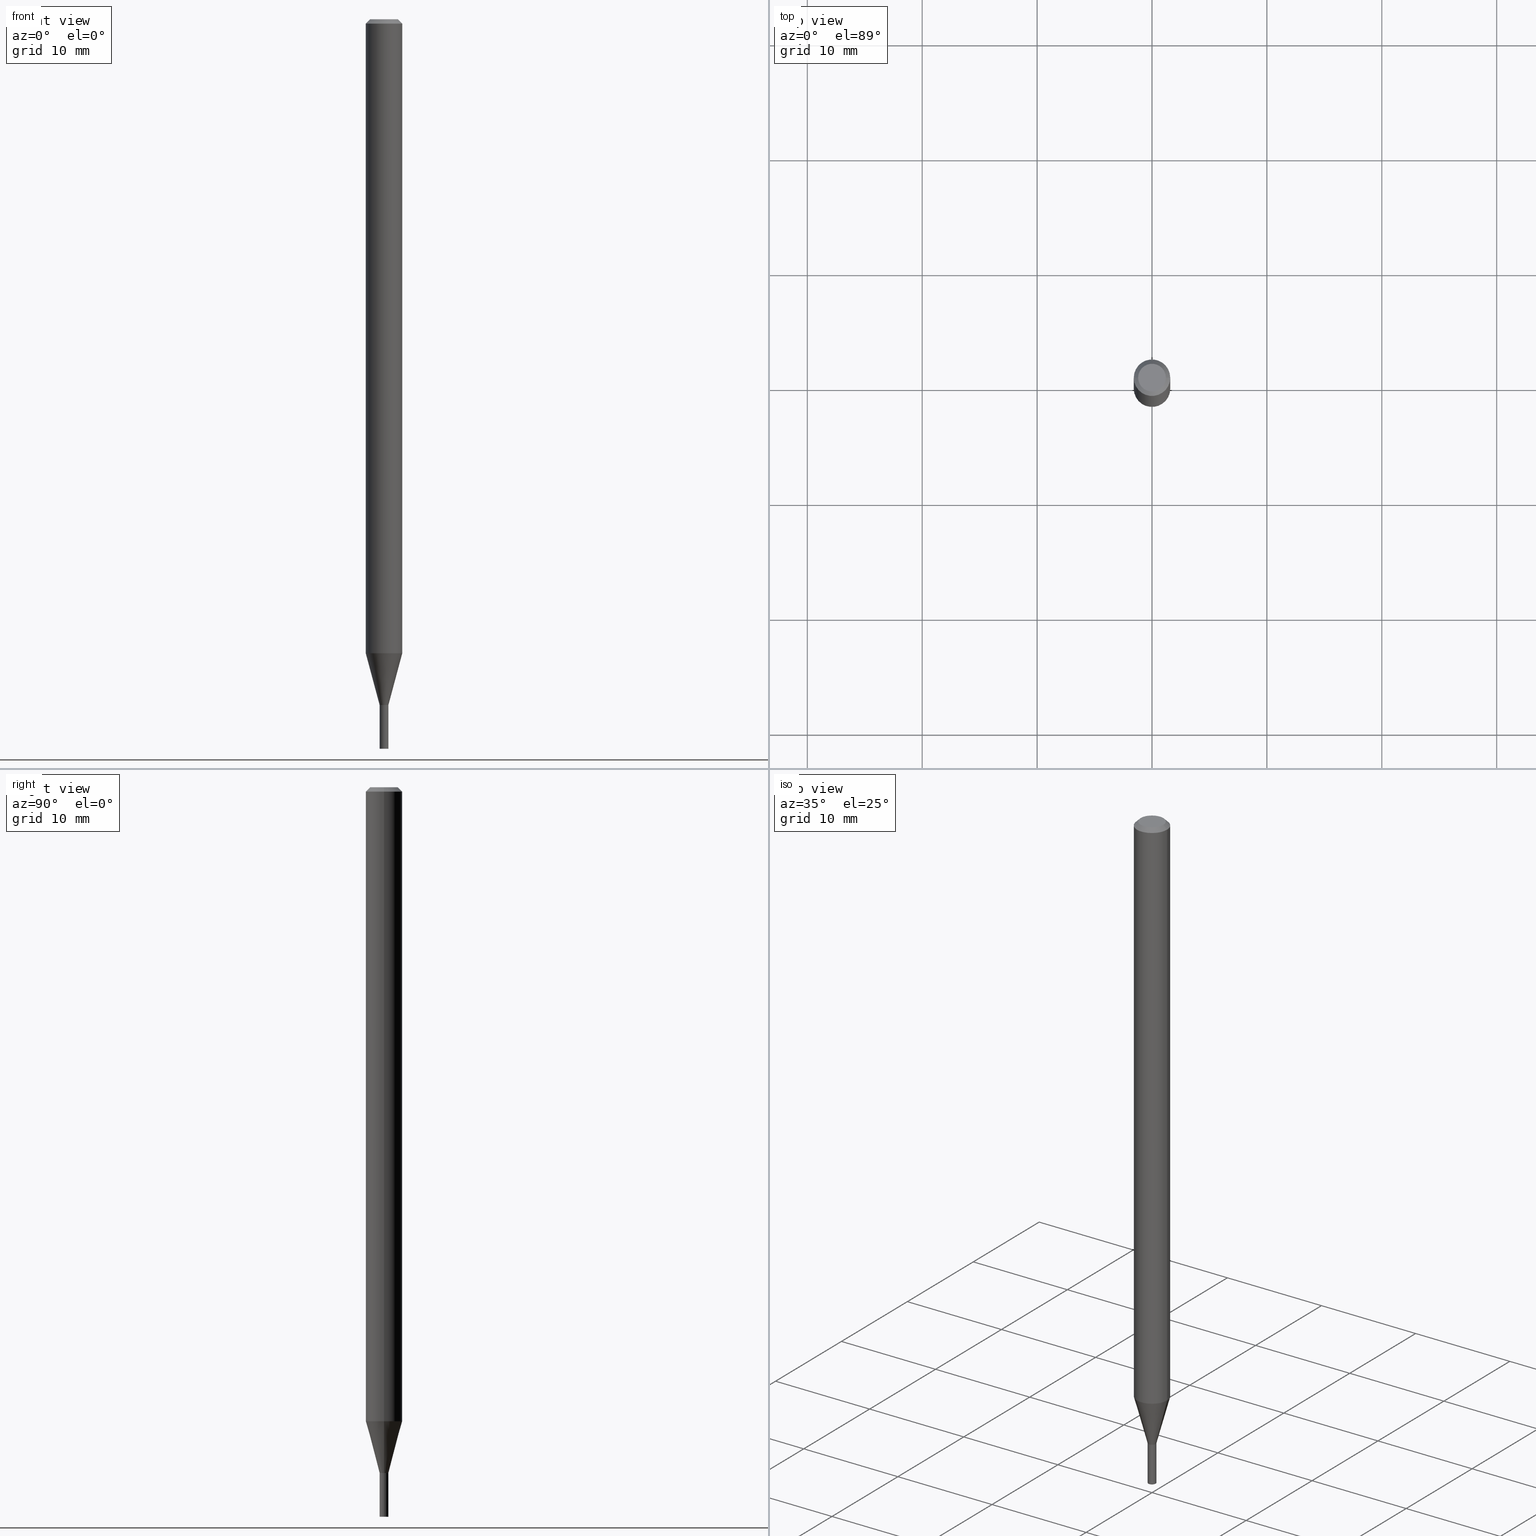
[diagram: canonical four-view strip — front | top / right | iso, engineering-drawing reading convention]
A machine part, canonical four-view strip (front | top / right | iso — engineering-drawing reading convention). The complete STEP part file that produces these views, byte-faithful:
ISO-10303-21;
HEADER;
FILE_DESCRIPTION (( 'STEP AP203' ),
    '1' );
FILE_NAME ('01231.STEP',
    '2024-03-20T00:19:22',
    ( '' ),
    ( '' ),
    'SwSTEP 2.0',
    'SolidWorks 2023',
    '' );
FILE_SCHEMA (( 'CONFIG_CONTROL_DESIGN' ));
ENDSEC;

DATA;
#1 = DIRECTION ( 'NONE',  ( -2.438088387897960049E-29, 3.491481338843145188E-15, 1.000000000000000000 ) ) ;
#2 = EDGE_CURVE ( 'NONE', #220, #433, #287, .T. ) ;
#3 = DIRECTION ( 'NONE',  ( -2.445468806185136597E-29, 3.491481338843145583E-15, 1.000000000000000000 ) ) ;
#4 = LINE ( 'NONE', #152, #146 ) ;
#5 = CONICAL_SURFACE ( 'NONE', #277, 0.06250000000000000000, 0.7853981633974284060 ) ;
#6 = CARTESIAN_POINT ( 'NONE',  ( 6.113672015462842613E-29, -8.728703347107864943E-15, -2.500000000000000000 ) ) ;
#7 = ORIENTED_EDGE ( 'NONE', *, *, #78, .F. ) ;
#8 = PLANE ( 'NONE',  #250 ) ;
#9 = CARTESIAN_POINT ( 'NONE',  ( 0.000000000000000000, 0.000000000000000000, 0.000000000000000000 ) ) ;
#10 = ORIENTED_EDGE ( 'NONE', *, *, #117, .F. ) ;
#11 = LINE ( 'NONE', #246, #55 ) ;
#12 = FACE_OUTER_BOUND ( 'NONE', #122, .T. ) ;
#13 = AXIS2_PLACEMENT_3D ( 'NONE', #9, #335, #158 ) ;
#14 = CC_DESIGN_SECURITY_CLASSIFICATION ( #56, ( #400 ) ) ;
#15 = DIRECTION ( 'NONE',  ( -2.445468806185136597E-29, 3.491481338843145583E-15, 1.000000000000000000 ) ) ;
#16 = CARTESIAN_POINT ( 'NONE',  ( 5.746851694535070554E-29, -8.204981146281391784E-15, -2.350000000000000089 ) ) ;
#17 = ADVANCED_FACE ( 'NONE', ( #456 ), #51, .F. ) ;
#18 = DIRECTION ( 'NONE',  ( -2.445468806185136877E-29, 3.491481338843145188E-15, 1.000000000000000000 ) ) ;
#19 = CALENDAR_DATE ( 2024, 19, 3 ) ;
#20 = DIRECTION ( 'NONE',  ( 1.000000000000000000, -6.982962677686241467E-15, 0.000000000000000000 ) ) ;
#21 = AXIS2_PLACEMENT_3D ( 'NONE', #100, #315, #369 ) ;
#22 = DIRECTION ( 'NONE',  ( 1.000000000000000000, -6.982962677686299054E-15, 0.000000000000000000 ) ) ;
#23 = ADVANCED_FACE ( 'NONE', ( #137 ), #255, .T. ) ;
#24 = PERSON_AND_ORGANIZATION_ROLE ( 'design_supplier' ) ;
#25 = CYLINDRICAL_SURFACE ( 'NONE', #300, 0.01500000000000019894 ) ;
#26 = SHAPE_DEFINITION_REPRESENTATION ( #81, #234 ) ;
#27 = EDGE_CURVE ( 'NONE', #254, #258, #451, .T. ) ;
#28 = ORIENTED_EDGE ( 'NONE', *, *, #127, .T. ) ;
#29 = CARTESIAN_POINT ( 'NONE',  ( 0.01499999999999999944, -1.047444401652940105E-16, 7.314265163693904390E-31 ) ) ;
#30 = ORIENTED_EDGE ( 'NONE', *, *, #390, .F. ) ;
#31 = PERSON_AND_ORGANIZATION_ROLE ( 'classification_officer' ) ;
#32 = CIRCLE ( 'NONE', #231, 0.01500000000000019720 ) ;
#33 = CIRCLE ( 'NONE', #307, 0.01500000000000020067 ) ;
#34 = ORIENTED_EDGE ( 'NONE', *, *, #322, .T. ) ;
#35 = VERTEX_POINT ( 'NONE', #57 ) ;
#36 = DIRECTION ( 'NONE',  ( -2.445468806185136597E-29, 3.491481338843145583E-15, 1.000000000000000000 ) ) ;
#37 = ORIENTED_EDGE ( 'NONE', *, *, #136, .F. ) ;
#38 = CONICAL_SURFACE ( 'NONE', #181, 0.01450000000000000074, 0.7853981633974718157 ) ;
#39 = VECTOR ( 'NONE', #154, 39.37007874015747433 ) ;
#40 = LOCAL_TIME ( 20, 19, 22.00000000000000000, #180 ) ;
#41 = DIRECTION ( 'NONE',  ( 1.000000000000000000, -6.982962677686266711E-15, 4.876176775795935232E-29 ) ) ;
#42 = ORIENTED_EDGE ( 'NONE', *, *, #127, .F. ) ;
#43 = CARTESIAN_POINT ( 'NONE',  ( 0.06250000000000000000, -4.888073874380388472E-16, -0.01499999999999999944 ) ) ;
#44 = VERTEX_POINT ( 'NONE', #208 ) ;
#45 = ORIENTED_EDGE ( 'NONE', *, *, #83, .F. ) ;
#46 =( NAMED_UNIT ( * ) PLANE_ANGLE_UNIT ( ) SI_UNIT ( $, .RADIAN. ) );
#47 = VECTOR ( 'NONE', #118, 39.37007874015748143 ) ;
#48 = ORIENTED_EDGE ( 'NONE', *, *, #144, .F. ) ;
#49 = CC_DESIGN_PERSON_AND_ORGANIZATION_ASSIGNMENT ( #455, #31, ( #56 ) ) ;
#50 = LINE ( 'NONE', #406, #466 ) ;
#51 = PLANE ( 'NONE',  #305 ) ;
#52 = DIRECTION ( 'NONE',  ( 2.445468806185136597E-29, -3.491481338843145583E-15, -1.000000000000000000 ) ) ;
#53 = APPROVAL ( #278, 'UNSPECIFIED' ) ;
#54 = CONICAL_SURFACE ( 'NONE', #397, 0.01450000000000000074, 0.7853981633974718157 ) ;
#55 = VECTOR ( 'NONE', #161, 39.37007874015748143 ) ;
#56 = SECURITY_CLASSIFICATION ( '', '', #414 ) ;
#57 = CARTESIAN_POINT ( 'NONE',  ( -0.01499999999999999944, -8.360260836330614030E-15, -2.350000000000000089 ) ) ;
#58 = COORDINATED_UNIVERSAL_TIME_OFFSET ( 5, 0, .BEHIND. ) ;
#59 = CARTESIAN_POINT ( 'NONE',  ( 5.745628960131978874E-29, -8.203235405611971069E-15, -2.349500000000000366 ) ) ;
#60 = CARTESIAN_POINT ( 'NONE',  ( 0.04749999999999999362, -4.035134999187568269E-16, 5.996944520148667891E-16 ) ) ;
#61 = ORIENTED_EDGE ( 'NONE', *, *, #303, .F. ) ;
#62 = COORDINATED_UNIVERSAL_TIME_OFFSET ( 5, 0, .BEHIND. ) ;
#63 = CIRCLE ( 'NONE', #21, 0.06250000000000000000 ) ;
#64 = AXIS2_PLACEMENT_3D ( 'NONE', #160, #371, #233 ) ;
#65 = CARTESIAN_POINT ( 'NONE',  ( -0.01500000000000019720, -8.096653995247955158E-15, -2.349500000000000366 ) ) ;
#66 = PRODUCT_RELATED_PRODUCT_CATEGORY ( 'detail', '', ( #175 ) ) ;
#67 = PERSON_AND_ORGANIZATION_ROLE ( 'creator' ) ;
#68 = ORIENTED_EDGE ( 'NONE', *, *, #70, .F. ) ;
#69 = CARTESIAN_POINT ( 'NONE',  ( -0.06250000000000000000, -3.375115811763730351E-15, -0.01499999999999999944 ) ) ;
#70 = EDGE_CURVE ( 'NONE', #44, #35, #140, .T. ) ;
#71 = VERTEX_POINT ( 'NONE', #446 ) ;
#72 = AXIS2_PLACEMENT_3D ( 'NONE', #75, #3, #434 ) ;
#73 = ORIENTED_EDGE ( 'NONE', *, *, #115, .T. ) ;
#74 = ORIENTED_EDGE ( 'NONE', *, *, #260, .T. ) ;
#75 = CARTESIAN_POINT ( 'NONE',  ( 5.746851694535070554E-29, -8.204981146281391784E-15, -2.350000000000000089 ) ) ;
#76 = EDGE_LOOP ( 'NONE', ( #356, #437, #28, #178 ) ) ;
#77 = CARTESIAN_POINT ( 'NONE',  ( 0.06250000000000000000, -4.811533449433679005E-16, -0.01499999999999999944 ) ) ;
#78 = EDGE_CURVE ( 'NONE', #258, #187, #269, .T. ) ;
#79 = LOCAL_TIME ( 20, 19, 22.00000000000000000, #97 ) ;
#80 = FACE_OUTER_BOUND ( 'NONE', #279, .T. ) ;
#81 = PRODUCT_DEFINITION_SHAPE ( 'NONE', 'NONE',  #429 ) ;
#82 = DIRECTION ( 'NONE',  ( 2.445468806185136597E-29, -3.491481338843145583E-15, -1.000000000000000000 ) ) ;
#83 = EDGE_CURVE ( 'NONE', #433, #35, #96, .T. ) ;
#84 = MANIFOLD_SOLID_BREP ( 'Body-Move/Copy2[1]', #210 ) ;
#85 = DIRECTION ( 'NONE',  ( 2.438088387897960049E-29, -3.491481338843145188E-15, -1.000000000000000000 ) ) ;
#86 =( GEOMETRIC_REPRESENTATION_CONTEXT ( 3 ) GLOBAL_UNCERTAINTY_ASSIGNED_CONTEXT ( ( #141 ) ) GLOBAL_UNIT_ASSIGNED_CONTEXT ( ( #440, #46, #196 ) ) REPRESENTATION_CONTEXT ( 'NONE', 'WORKASPACE' ) );
#87 = CARTESIAN_POINT ( 'NONE',  ( -0.06250000000000000000, 3.840629472727444916E-16, -0.01499999999999999944 ) ) ;
#88 = ADVANCED_FACE ( 'NONE', ( #276 ), #54, .T. ) ;
#89 = CARTESIAN_POINT ( 'NONE',  ( -0.01450000000000000074, -8.099303222422067148E-15, -2.350000000000000533 ) ) ;
#90 = CARTESIAN_POINT ( 'NONE',  ( 0.000000000000000000, 0.000000000000000000, 0.000000000000000000 ) ) ;
#91 = APPROVAL ( #391, 'UNSPECIFIED' ) ;
#92 =( LENGTH_UNIT ( ) NAMED_UNIT ( * ) SI_UNIT ( $, .METRE. ) );
#93 = DIRECTION ( 'NONE',  ( -1.000000000000000000, 6.982962677686266711E-15, 0.000000000000000000 ) ) ;
#94 = DATE_AND_TIME ( #450, #40 ) ;
#95 = CONICAL_SURFACE ( 'NONE', #72, 0.01500000000000020067, 0.2617993877991501295 ) ;
#96 = LINE ( 'NONE', #342, #428 ) ;
#97 = COORDINATED_UNIVERSAL_TIME_OFFSET ( 5, 0, .BEHIND. ) ;
#98 = DIRECTION ( 'NONE',  ( 1.000000000000000000, -6.982962677686268288E-15, 0.000000000000000000 ) ) ;
#99 = ADVANCED_FACE ( 'NONE', ( #165 ), #38, .T. ) ;
#100 = CARTESIAN_POINT ( 'NONE',  ( 5.313337537467207384E-29, -7.586037823144938462E-15, -2.172727586640479824 ) ) ;
#101 = DIRECTION ( 'NONE',  ( 0.000000000000000000, 0.000000000000000000, 1.000000000000000000 ) ) ;
#102 = VECTOR ( 'NONE', #454, 39.37007874015747433 ) ;
#103 = DESIGN_CONTEXT ( 'detailed design', #245, 'design' ) ;
#104 = DIRECTION ( 'NONE',  ( 1.000000000000000000, -6.982962677686267499E-15, 4.852736867747366768E-29 ) ) ;
#105 = PERSON_AND_ORGANIZATION ( #111, #212 ) ;
#106 = ORIENTED_EDGE ( 'NONE', *, *, #144, .T. ) ;
#107 = VERTEX_POINT ( 'NONE', #421 ) ;
#108 = EDGE_LOOP ( 'NONE', ( #238, #222, #209, #37 ) ) ;
#109 = EDGE_LOOP ( 'NONE', ( #253, #401, #263, #30 ) ) ;
#110 = AXIS2_PLACEMENT_3D ( 'NONE', #398, #259, #116 ) ;
#111 = PERSON ( 'UNSPECIFIED', 'UNSPECIFIED', 'UNSPECIFIED', ('UNSPECIFIED'), ('UNSPECIFIED'), ('UNSPECIFIED') ) ;
#112 = EDGE_LOOP ( 'NONE', ( #325, #425 ) ) ;
#113 = DIRECTION ( 'NONE',  ( -0.7071067811865642261, 7.493145998870414114E-15, 0.7071067811865309194 ) ) ;
#114 = EDGE_LOOP ( 'NONE', ( #45, #360, #358, #431 ) ) ;
#115 = EDGE_CURVE ( 'NONE', #295, #71, #32, .T. ) ;
#116 = DIRECTION ( 'NONE',  ( 1.000000000000000000, -6.982962677686262766E-15, 0.000000000000000000 ) ) ;
#117 = EDGE_CURVE ( 'NONE', #463, #254, #63, .T. ) ;
#118 = DIRECTION ( 'NONE',  ( -2.445468806185136877E-29, 3.491481338843145188E-15, 1.000000000000000000 ) ) ;
#119 = CIRCLE ( 'NONE', #125, 0.04749999999999999362 ) ;
#120 = ADVANCED_FACE ( 'NONE', ( #171 ), #244, .T. ) ;
#121 = CARTESIAN_POINT ( 'NONE',  ( -0.01499999999999999944, -8.360260836330614030E-15, -2.500000000000000000 ) ) ;
#122 = EDGE_LOOP ( 'NONE', ( #443, #294, #10, #42 ) ) ;
#123 = DIRECTION ( 'NONE',  ( -0.7071067811865333619, 2.468850131082109149E-15, -0.7071067811865614505 ) ) ;
#124 = EDGE_LOOP ( 'NONE', ( #190, #405, #365, #332 ) ) ;
#125 = AXIS2_PLACEMENT_3D ( 'NONE', #150, #396, #174 ) ;
#126 = FACE_OUTER_BOUND ( 'NONE', #108, .T. ) ;
#127 = EDGE_CURVE ( 'NONE', #228, #463, #272, .T. ) ;
#128 = FACE_OUTER_BOUND ( 'NONE', #264, .T. ) ;
#129 = DIRECTION ( 'NONE',  ( -1.000000000000000000, 6.982962677686265922E-15, -4.876176775795935793E-29 ) ) ;
#130 = LINE ( 'NONE', #388, #39 ) ;
#131 = CALENDAR_DATE ( 2024, 19, 3 ) ;
#132 = DIRECTION ( 'NONE',  ( -2.445468806185136597E-29, 3.491481338843145583E-15, 1.000000000000000000 ) ) ;
#133 = CIRCLE ( 'NONE', #64, 0.06250000000000000000 ) ;
#134 = DIRECTION ( 'NONE',  ( -2.438088387897960049E-29, 3.491481338843145188E-15, 1.000000000000000000 ) ) ;
#135 = PERSON_AND_ORGANIZATION ( #111, #212 ) ;
#136 = EDGE_CURVE ( 'NONE', #463, #187, #167, .T. ) ;
#137 = FACE_OUTER_BOUND ( 'NONE', #192, .T. ) ;
#138 = DIRECTION ( 'NONE',  ( -2.445468806185136597E-29, 3.491481338843145583E-15, 1.000000000000000000 ) ) ;
#139 = APPROVAL_DATE_TIME ( #349, #53 ) ;
#140 = CIRCLE ( 'NONE', #248, 0.01499999999999999944 ) ;
#141 = UNCERTAINTY_MEASURE_WITH_UNIT (LENGTH_MEASURE( 1.000000000000000082E-05 ), #440, 'distance_accuracy_value', 'NONE');
#142 = AXIS2_PLACEMENT_3D ( 'NONE', #90, #310, #448 ) ;
#143 = ORIENTED_EDGE ( 'NONE', *, *, #27, .F. ) ;
#144 = EDGE_CURVE ( 'NONE', #228, #71, #11, .T. ) ;
#145 = CARTESIAN_POINT ( 'NONE',  ( 5.746851694535070554E-29, -8.204981146281391784E-15, -2.350000000000000089 ) ) ;
#146 = VECTOR ( 'NONE', #113, 39.37007874015748143 ) ;
#147 = LOCAL_TIME ( 20, 19, 22.00000000000000000, #173 ) ;
#148 = VERTEX_POINT ( 'NONE', #381 ) ;
#149 = CC_DESIGN_DATE_AND_TIME_ASSIGNMENT ( #94, #242, ( #56 ) ) ;
#150 = CARTESIAN_POINT ( 'NONE',  ( -1.466534075644639810E-44, 2.093821988217664729E-30, 5.996944520148642253E-16 ) ) ;
#151 = VERTEX_POINT ( 'NONE', #60 ) ;
#152 = CARTESIAN_POINT ( 'NONE',  ( -0.01450000000000000074, -8.101952449596179138E-15, -2.350000000000000533 ) ) ;
#153 = ADVANCED_FACE ( 'NONE', ( #128 ), #411, .F. ) ;
#154 = DIRECTION ( 'NONE',  ( -0.2588190451025214611, 5.211531920934551042E-15, 0.9659258262890682012 ) ) ;
#155 = ORIENTED_EDGE ( 'NONE', *, *, #136, .T. ) ;
#156 = CLOSED_SHELL ( 'NONE', ( #153, #99, #435, #442, #380, #329, #339, #23, #316, #203, #88, #326 ) ) ;
#157 = AXIS2_PLACEMENT_3D ( 'NONE', #460, #36, #104 ) ;
#158 = DIRECTION ( 'NONE',  ( 1.000000000000000000, -6.982962677686266711E-15, 4.876176775795935793E-29 ) ) ;
#159 = CARTESIAN_POINT ( 'NONE',  ( 0.000000000000000000, 0.000000000000000000, 0.000000000000000000 ) ) ;
#160 = CARTESIAN_POINT ( 'NONE',  ( 3.668203209277705088E-31, -5.237222008264718399E-17, -0.01499999999999999944 ) ) ;
#161 = DIRECTION ( 'NONE',  ( -2.445468806185136877E-29, 3.491481338843145188E-15, 1.000000000000000000 ) ) ;
#162 = DIRECTION ( 'NONE',  ( -2.445468806185136597E-29, 3.491481338843145583E-15, 1.000000000000000000 ) ) ;
#163 = CARTESIAN_POINT ( 'NONE',  ( 0.000000000000000000, 0.000000000000000000, 0.000000000000000000 ) ) ;
#164 = FACE_OUTER_BOUND ( 'NONE', #324, .T. ) ;
#165 = FACE_OUTER_BOUND ( 'NONE', #109, .T. ) ;
#166 = DIRECTION ( 'NONE',  ( 1.000000000000000000, 0.000000000000000000, 0.000000000000000000 ) ) ;
#167 = LINE ( 'NONE', #344, #415 ) ;
#168 = CC_DESIGN_DATE_AND_TIME_ASSIGNMENT ( #249, #387, ( #429 ) ) ;
#169 = AXIS2_PLACEMENT_3D ( 'NONE', #413, #52, #93 ) ;
#170 = VECTOR ( 'NONE', #123, 39.37007874015748854 ) ;
#171 = FACE_OUTER_BOUND ( 'NONE', #114, .T. ) ;
#172 = ORIENTED_EDGE ( 'NONE', *, *, #225, .F. ) ;
#173 = COORDINATED_UNIVERSAL_TIME_OFFSET ( 5, 0, .BEHIND. ) ;
#174 = DIRECTION ( 'NONE',  ( 1.000000000000000000, -6.982962677686267499E-15, 4.852736867747366768E-29 ) ) ;
#175 = PRODUCT ( '01231', '01231', '', ( #275 ) ) ;
#176 = APPROVAL_ROLE ( '' ) ;
#177 = EDGE_CURVE ( 'NONE', #364, #254, #130, .T. ) ;
#178 = ORIENTED_EDGE ( 'NONE', *, *, #322, .F. ) ;
#179 = CARTESIAN_POINT ( 'NONE',  ( 3.316907271900976096E-16, 0.04749999999999999362, 1.340018624123827409E-16 ) ) ;
#180 = COORDINATED_UNIVERSAL_TIME_OFFSET ( 5, 0, .BEHIND. ) ;
#181 = AXIS2_PLACEMENT_3D ( 'NONE', #419, #372, #22 ) ;
#182 = ORIENTED_EDGE ( 'NONE', *, *, #449, .T. ) ;
#183 = ORIENTED_EDGE ( 'NONE', *, *, #290, .F. ) ;
#184 = EDGE_CURVE ( 'NONE', #35, #44, #320, .T. ) ;
#185 = DIRECTION ( 'NONE',  ( -2.445468806185136877E-29, 3.491481338843145188E-15, 1.000000000000000000 ) ) ;
#186 = ORIENTED_EDGE ( 'NONE', *, *, #282, .T. ) ;
#187 = VERTEX_POINT ( 'NONE', #43 ) ;
#188 = LOCAL_TIME ( 20, 19, 22.00000000000000000, #58 ) ;
#189 = FACE_OUTER_BOUND ( 'NONE', #76, .T. ) ;
#190 = ORIENTED_EDGE ( 'NONE', *, *, #214, .F. ) ;
#191 = CARTESIAN_POINT ( 'NONE',  ( 5.746851694535070554E-29, -8.204981146281391784E-15, -2.350000000000000089 ) ) ;
#192 = EDGE_LOOP ( 'NONE', ( #354, #426, #252, #193 ) ) ;
#193 = ORIENTED_EDGE ( 'NONE', *, *, #78, .T. ) ;
#194 = DIRECTION ( 'NONE',  ( 1.000000000000000000, -6.982962677686266711E-15, 4.876176775795935793E-29 ) ) ;
#195 = APPROVAL_PERSON_ORGANIZATION ( #135, #243, #379 ) ;
#196 =( NAMED_UNIT ( * ) SI_UNIT ( $, .STERADIAN. ) SOLID_ANGLE_UNIT ( ) );
#197 = DIRECTION ( 'NONE',  ( -1.000000000000000000, 6.982962677686266711E-15, 0.000000000000000000 ) ) ;
#198 = DIRECTION ( 'NONE',  ( -2.445468806185136597E-29, 3.491481338843145583E-15, 1.000000000000000000 ) ) ;
#199 = DIRECTION ( 'NONE',  ( 1.000000000000000000, -6.982962677686299054E-15, 0.000000000000000000 ) ) ;
#200 = CIRCLE ( 'NONE', #461, 0.01450000000000000074 ) ;
#201 = DIRECTION ( 'NONE',  ( -2.445468806185136597E-29, 3.491481338843145583E-15, 1.000000000000000000 ) ) ;
#202 = APPLICATION_CONTEXT ( 'configuration controlled 3d designs of mechanical parts and assemblies' ) ;
#203 = ADVANCED_FACE ( 'NONE', ( #261 ), #292, .F. ) ;
#204 = DIRECTION ( 'NONE',  ( -2.445468806185136597E-29, 3.491481338843145583E-15, 1.000000000000000000 ) ) ;
#205 = APPROVAL_ROLE ( '' ) ;
#206 = DIMENSIONAL_EXPONENTS ( 1.000000000000000000, 0.000000000000000000, 0.000000000000000000, 0.000000000000000000, 0.000000000000000000, 0.000000000000000000, 0.000000000000000000 ) ;
#207 = DIRECTION ( 'NONE',  ( 1.000000000000000000, -6.982962677686267499E-15, 4.876176775795936353E-29 ) ) ;
#208 = CARTESIAN_POINT ( 'NONE',  ( 0.01499999999999999944, -8.309725586446686731E-15, -2.350000000000000089 ) ) ;
#209 = ORIENTED_EDGE ( 'NONE', *, *, #462, .F. ) ;
#210 = CLOSED_SHELL ( 'NONE', ( #357, #17, #120, #409 ) ) ;
#211 = PERSON_AND_ORGANIZATION_ROLE ( 'creator' ) ;
#212 = ORGANIZATION ( 'UNSPECIFIED', 'UNSPECIFIED', '' ) ;
#213 = DIRECTION ( 'NONE',  ( -1.000000000000000000, 6.982962677686265922E-15, -4.876176775795935793E-29 ) ) ;
#214 = EDGE_CURVE ( 'NONE', #346, #295, #4, .T. ) ;
#215 = APPLICATION_PROTOCOL_DEFINITION ( 'international standard', 'config_control_design', 1994, #202 ) ;
#216 = CARTESIAN_POINT ( 'NONE',  ( 0.01499999999999999944, -8.833447787273158312E-15, -2.500000000000000000 ) ) ;
#217 = PERSON_AND_ORGANIZATION ( #111, #212 ) ;
#218 = CIRCLE ( 'NONE', #385, 0.01450000000000000074 ) ;
#219 = ORIENTED_EDGE ( 'NONE', *, *, #301, .F. ) ;
#220 = VERTEX_POINT ( 'NONE', #216 ) ;
#221 = DIRECTION ( 'NONE',  ( 1.000000000000000000, -6.982962677686265922E-15, 4.876176775795935793E-29 ) ) ;
#222 = ORIENTED_EDGE ( 'NONE', *, *, #27, .T. ) ;
#223 = DIRECTION ( 'NONE',  ( -2.445468806185136597E-29, 3.491481338843145583E-15, 1.000000000000000000 ) ) ;
#224 = APPROVAL_PERSON_ORGANIZATION ( #418, #91, #205 ) ;
#225 = EDGE_CURVE ( 'NONE', #107, #346, #200, .T. ) ;
#226 = CARTESIAN_POINT ( 'NONE',  ( 0.01500000000000020067, -8.309725586446688309E-15, -2.350000000000000089 ) ) ;
#227 = DIRECTION ( 'NONE',  ( 1.000000000000000000, -6.982962677686241467E-15, 0.000000000000000000 ) ) ;
#228 = VERTEX_POINT ( 'NONE', #226 ) ;
#229 = ORIENTED_EDGE ( 'NONE', *, *, #2, .F. ) ;
#230 = DIRECTION ( 'NONE',  ( -2.445468806185136597E-29, 3.491481338843145583E-15, 1.000000000000000000 ) ) ;
#231 = AXIS2_PLACEMENT_3D ( 'NONE', #59, #15, #20 ) ;
#232 = CC_DESIGN_APPROVAL ( #243, ( #400 ) ) ;
#233 = DIRECTION ( 'NONE',  ( 1.000000000000000000, -6.982962677686266711E-15, 0.000000000000000000 ) ) ;
#234 = ADVANCED_BREP_SHAPE_REPRESENTATION ( '01231', ( #84, #389, #293 ), #86 ) ;
#235 = ORIENTED_EDGE ( 'NONE', *, *, #268, .T. ) ;
#236 = DIRECTION ( 'NONE',  ( 1.000000000000000000, -6.982962677686267499E-15, 4.876176775795936353E-29 ) ) ;
#237 = DIRECTION ( 'NONE',  ( 1.000000000000000000, -6.982962677686265922E-15, 4.876176775795935793E-29 ) ) ;
#238 = ORIENTED_EDGE ( 'NONE', *, *, #117, .T. ) ;
#239 = DIRECTION ( 'NONE',  ( -2.445468806185136877E-29, 3.491481338843145188E-15, 1.000000000000000000 ) ) ;
#240 = AXIS2_PLACEMENT_3D ( 'NONE', #6, #201, #266 ) ;
#241 = CIRCLE ( 'NONE', #240, 0.01499999999999999944 ) ;
#242 = DATE_TIME_ROLE ( 'classification_date' ) ;
#243 = APPROVAL ( #420, 'UNSPECIFIED' ) ;
#244 = CYLINDRICAL_SURFACE ( 'NONE', #407, 0.01499999999999999944 ) ;
#245 = APPLICATION_CONTEXT ( 'configuration controlled 3d designs of mechanical parts and assemblies' ) ;
#246 = CARTESIAN_POINT ( 'NONE',  ( 0.01500000000000019894, -1.047444401652953910E-16, 7.314265163693999853E-31 ) ) ;
#247 = CARTESIAN_POINT ( 'NONE',  ( 5.746851694535071675E-29, -8.204981146281393362E-15, -2.350000000000000533 ) ) ;
#248 = AXIS2_PLACEMENT_3D ( 'NONE', #417, #345, #98 ) ;
#249 = DATE_AND_TIME ( #131, #79 ) ;
#250 = AXIS2_PLACEMENT_3D ( 'NONE', #402, #85, #129 ) ;
#251 = DIRECTION ( 'NONE',  ( 1.000000000000000000, -6.982962677686299054E-15, 0.000000000000000000 ) ) ;
#252 = ORIENTED_EDGE ( 'NONE', *, *, #370, .T. ) ;
#253 = ORIENTED_EDGE ( 'NONE', *, *, #225, .T. ) ;
#254 = VERTEX_POINT ( 'NONE', #257 ) ;
#255 = CONICAL_SURFACE ( 'NONE', #169, 0.06250000000000000000, 0.7853981633974284060 ) ;
#256 = AXIS2_PLACEMENT_3D ( 'NONE', #191, #223, #296 ) ;
#257 = CARTESIAN_POINT ( 'NONE',  ( -0.06249999999999999306, -7.141948613294875845E-15, -2.172727586640479824 ) ) ;
#258 = VERTEX_POINT ( 'NONE', #69 ) ;
#259 = DIRECTION ( 'NONE',  ( -2.445468806185136597E-29, 3.491481338843145583E-15, 1.000000000000000000 ) ) ;
#260 = EDGE_CURVE ( 'NONE', #148, #151, #328, .T. ) ;
#261 = FACE_OUTER_BOUND ( 'NONE', #373, .T. ) ;
#262 = VECTOR ( 'NONE', #350, 39.37007874015748854 ) ;
#263 = ORIENTED_EDGE ( 'NONE', *, *, #449, .F. ) ;
#264 = EDGE_LOOP ( 'NONE', ( #464, #235, #73, #48 ) ) ;
#265 = FACE_OUTER_BOUND ( 'NONE', #112, .T. ) ;
#266 = DIRECTION ( 'NONE',  ( 1.000000000000000000, -6.982962677686203602E-15, 0.000000000000000000 ) ) ;
#267 = LINE ( 'NONE', #87, #170 ) ;
#268 = EDGE_CURVE ( 'NONE', #364, #295, #359, .T. ) ;
#269 = CIRCLE ( 'NONE', #375, 0.06250000000000000000 ) ;
#270 = LOCAL_TIME ( 20, 19, 22.00000000000000000, #62 ) ;
#271 = LENGTH_MEASURE_WITH_UNIT ( LENGTH_MEASURE( 0.02539999999999999897 ), #92 );
#272 = LINE ( 'NONE', #338, #102 ) ;
#273 = DIRECTION ( 'NONE',  ( 1.000000000000000000, -6.982962677686239889E-15, 0.000000000000000000 ) ) ;
#274 = DIRECTION ( 'NONE',  ( 1.000000000000000000, -6.982962677686203602E-15, 0.000000000000000000 ) ) ;
#275 = MECHANICAL_CONTEXT ( 'NONE', #202, 'mechanical' ) ;
#276 = FACE_OUTER_BOUND ( 'NONE', #124, .T. ) ;
#277 = AXIS2_PLACEMENT_3D ( 'NONE', #336, #82, #197 ) ;
#278 = APPROVAL_STATUS ( 'not_yet_approved' ) ;
#279 = EDGE_LOOP ( 'NONE', ( #143, #34, #155, #7 ) ) ;
#280 = CARTESIAN_POINT ( 'NONE',  ( 5.746851694535071675E-29, -8.204981146281393362E-15, -2.350000000000000533 ) ) ;
#281 = APPROVAL_DATE_TIME ( #382, #91 ) ;
#282 = EDGE_CURVE ( 'NONE', #151, #187, #363, .T. ) ;
#283 = DIRECTION ( 'NONE',  ( 1.000000000000000000, -6.982962677686266711E-15, 0.000000000000000000 ) ) ;
#284 = CALENDAR_DATE ( 2024, 19, 3 ) ;
#285 = CC_DESIGN_PERSON_AND_ORGANIZATION_ASSIGNMENT ( #453, #211, ( #400 ) ) ;
#286 = CYLINDRICAL_SURFACE ( 'NONE', #408, 0.06250000000000000000 ) ;
#287 = CIRCLE ( 'NONE', #384, 0.01499999999999999944 ) ;
#288 = PERSON_AND_ORGANIZATION ( #111, #212 ) ;
#289 = CC_DESIGN_APPROVAL ( #91, ( #429 ) ) ;
#290 = EDGE_CURVE ( 'NONE', #151, #148, #119, .T. ) ;
#291 = ORIENTED_EDGE ( 'NONE', *, *, #297, .F. ) ;
#292 = PLANE ( 'NONE',  #399 ) ;
#293 = AXIS2_PLACEMENT_3D ( 'NONE', #343, #101, #166 ) ;
#294 = ORIENTED_EDGE ( 'NONE', *, *, #177, .T. ) ;
#295 = VERTEX_POINT ( 'NONE', #65 ) ;
#296 = DIRECTION ( 'NONE',  ( 1.000000000000000000, -6.982962677686239889E-15, 0.000000000000000000 ) ) ;
#297 = EDGE_CURVE ( 'NONE', #220, #44, #438, .T. ) ;
#298 = DIRECTION ( 'NONE',  ( -2.445468806185136597E-29, 3.491481338843145583E-15, 1.000000000000000000 ) ) ;
#299 = CARTESIAN_POINT ( 'NONE',  ( 5.746851694535071675E-29, -8.204981146281393362E-15, -2.350000000000000533 ) ) ;
#300 = AXIS2_PLACEMENT_3D ( 'NONE', #457, #361, #41 ) ;
#301 = EDGE_CURVE ( 'NONE', #346, #107, #218, .T. ) ;
#302 = DIRECTION ( 'NONE',  ( -2.445468806185136597E-29, 3.491481338843145583E-15, 1.000000000000000000 ) ) ;
#303 = EDGE_CURVE ( 'NONE', #228, #364, #362, .T. ) ;
#304 = CYLINDRICAL_SURFACE ( 'NONE', #13, 0.06250000000000000000 ) ;
#305 = AXIS2_PLACEMENT_3D ( 'NONE', #378, #134, #237 ) ;
#306 = CARTESIAN_POINT ( 'NONE',  ( 3.668203209277705088E-31, -5.237222008264718399E-17, -0.01499999999999999944 ) ) ;
#307 = AXIS2_PLACEMENT_3D ( 'NONE', #309, #230, #273 ) ;
#308 = APPROVAL_PERSON_ORGANIZATION ( #288, #53, #176 ) ;
#309 = CARTESIAN_POINT ( 'NONE',  ( 5.746851694535070554E-29, -8.204981146281391784E-15, -2.350000000000000089 ) ) ;
#310 = DIRECTION ( 'NONE',  ( -2.445468806185136597E-29, 3.491481338843145583E-15, 1.000000000000000000 ) ) ;
#311 = DIRECTION ( 'NONE',  ( 1.000000000000000000, -6.982962677686239889E-15, 0.000000000000000000 ) ) ;
#312 = CARTESIAN_POINT ( 'NONE',  ( 6.113672015462842613E-29, -8.728703347107864943E-15, -2.500000000000000000 ) ) ;
#313 = DIRECTION ( 'NONE',  ( -2.445468806185136877E-29, 3.491481338843145188E-15, 1.000000000000000000 ) ) ;
#314 = AXIS2_PLACEMENT_3D ( 'NONE', #179, #317, #213 ) ;
#315 = DIRECTION ( 'NONE',  ( -2.445468806185136597E-29, 3.491481338843145583E-15, 1.000000000000000000 ) ) ;
#316 = ADVANCED_FACE ( 'NONE', ( #330 ), #432, .F. ) ;
#317 = DIRECTION ( 'NONE',  ( 2.438088387897960049E-29, -3.491481338843145188E-15, -1.000000000000000000 ) ) ;
#318 = DATE_AND_TIME ( #351, #188 ) ;
#319 = DIRECTION ( 'NONE',  ( -2.445468806185136597E-29, 3.491481338843145583E-15, 1.000000000000000000 ) ) ;
#320 = CIRCLE ( 'NONE', #416, 0.01499999999999999944 ) ;
#321 = CC_DESIGN_APPROVAL ( #53, ( #56 ) ) ;
#322 = EDGE_CURVE ( 'NONE', #254, #463, #393, .T. ) ;
#323 = EDGE_LOOP ( 'NONE', ( #74, #374 ) ) ;
#324 = EDGE_LOOP ( 'NONE', ( #395, #403, #68, #291 ) ) ;
#325 = ORIENTED_EDGE ( 'NONE', *, *, #70, .T. ) ;
#326 = ADVANCED_FACE ( 'NONE', ( #348 ), #25, .F. ) ;
#327 = DIRECTION ( 'NONE',  ( 1.000000000000000000, -6.982962677686299054E-15, 0.000000000000000000 ) ) ;
#328 = CIRCLE ( 'NONE', #157, 0.04749999999999999362 ) ;
#329 = ADVANCED_FACE ( 'NONE', ( #189 ), #95, .T. ) ;
#330 = FACE_OUTER_BOUND ( 'NONE', #323, .T. ) ;
#331 = DIRECTION ( 'NONE',  ( 1.000000000000000000, -6.982962677686268288E-15, 0.000000000000000000 ) ) ;
#332 = ORIENTED_EDGE ( 'NONE', *, *, #115, .F. ) ;
#333 = DIRECTION ( 'NONE',  ( -2.445468806185136597E-29, 3.491481338843145583E-15, 1.000000000000000000 ) ) ;
#334 = AXIS2_PLACEMENT_3D ( 'NONE', #441, #302, #227 ) ;
#335 = DIRECTION ( 'NONE',  ( -2.445468806185136597E-29, 3.491481338843145583E-15, 1.000000000000000000 ) ) ;
#336 = CARTESIAN_POINT ( 'NONE',  ( 3.668203209277705088E-31, -5.237222008264718399E-17, -0.01499999999999999944 ) ) ;
#337 = ORIENTED_EDGE ( 'NONE', *, *, #386, .F. ) ;
#338 = CARTESIAN_POINT ( 'NONE',  ( 0.01500000000000020067, -8.309725586446688309E-15, -2.350000000000000089 ) ) ;
#339 = ADVANCED_FACE ( 'NONE', ( #80 ), #286, .T. ) ;
#340 = DIRECTION ( 'NONE',  ( -2.445468806185136597E-29, 3.491481338843145583E-15, 1.000000000000000000 ) ) ;
#341 = DIRECTION ( 'NONE',  ( 0.7071067811865642261, -2.468850131082431399E-15, 0.7071067811865309194 ) ) ;
#342 = CARTESIAN_POINT ( 'NONE',  ( -0.01499999999999999944, 1.065814103640150239E-16, -7.378402635382358533E-31 ) ) ;
#343 = CARTESIAN_POINT ( 'NONE',  ( 0.000000000000000000, 0.000000000000000000, 0.000000000000000000 ) ) ;
#344 = CARTESIAN_POINT ( 'NONE',  ( 0.06250000000000000000, -4.364351673553916694E-16, 3.047610484872459871E-30 ) ) ;
#345 = DIRECTION ( 'NONE',  ( -2.445468806185136597E-29, 3.491481338843145583E-15, 1.000000000000000000 ) ) ;
#346 = VERTEX_POINT ( 'NONE', #89 ) ;
#347 = PERSON_AND_ORGANIZATION ( #111, #212 ) ;
#348 = FACE_OUTER_BOUND ( 'NONE', #366, .T. ) ;
#349 = DATE_AND_TIME ( #19, #147 ) ;
#350 = DIRECTION ( 'NONE',  ( 0.7071067811865333619, -7.319954787623207136E-15, -0.7071067811865614505 ) ) ;
#351 = CALENDAR_DATE ( 2024, 19, 3 ) ;
#352 = CC_DESIGN_PERSON_AND_ORGANIZATION_ASSIGNMENT ( #105, #24, ( #400 ) ) ;
#353 = EDGE_LOOP ( 'NONE', ( #229, #337 ) ) ;
#354 = ORIENTED_EDGE ( 'NONE', *, *, #282, .F. ) ;
#355 = CIRCLE ( 'NONE', #334, 0.01500000000000019720 ) ;
#356 = ORIENTED_EDGE ( 'NONE', *, *, #177, .F. ) ;
#357 = ADVANCED_FACE ( 'NONE', ( #164 ), #410, .T. ) ;
#358 = ORIENTED_EDGE ( 'NONE', *, *, #297, .T. ) ;
#359 = LINE ( 'NONE', #394, #47 ) ;
#360 = ORIENTED_EDGE ( 'NONE', *, *, #386, .T. ) ;
#361 = DIRECTION ( 'NONE',  ( -2.445468806185136597E-29, 3.491481338843145583E-15, 1.000000000000000000 ) ) ;
#362 = CIRCLE ( 'NONE', #256, 0.01500000000000020067 ) ;
#363 = LINE ( 'NONE', #77, #262 ) ;
#364 = VERTEX_POINT ( 'NONE', #404 ) ;
#365 = ORIENTED_EDGE ( 'NONE', *, *, #390, .T. ) ;
#366 = EDGE_LOOP ( 'NONE', ( #424, #61, #106, #182 ) ) ;
#367 = VECTOR ( 'NONE', #185, 39.37007874015748143 ) ;
#368 = ORIENTED_EDGE ( 'NONE', *, *, #370, .F. ) ;
#369 = DIRECTION ( 'NONE',  ( 1.000000000000000000, -6.982962677686262766E-15, 0.000000000000000000 ) ) ;
#370 = EDGE_CURVE ( 'NONE', #148, #258, #267, .T. ) ;
#371 = DIRECTION ( 'NONE',  ( -2.445468806185136597E-29, 3.491481338843145583E-15, 1.000000000000000000 ) ) ;
#372 = DIRECTION ( 'NONE',  ( -2.445468806185136597E-29, 3.491481338843145583E-15, 1.000000000000000000 ) ) ;
#373 = EDGE_LOOP ( 'NONE', ( #172, #219 ) ) ;
#374 = ORIENTED_EDGE ( 'NONE', *, *, #290, .T. ) ;
#375 = AXIS2_PLACEMENT_3D ( 'NONE', #306, #204, #283 ) ;
#376 = CARTESIAN_POINT ( 'NONE',  ( -0.06250000000000000000, 4.440892098500626162E-16, -3.074334431409316114E-30 ) ) ;
#377 = PERSON_AND_ORGANIZATION_ROLE ( 'design_owner' ) ;
#378 = CARTESIAN_POINT ( 'NONE',  ( 6.194428952736783458E-29, -8.613054816532157721E-15, -2.500000000000000000 ) ) ;
#379 = APPROVAL_ROLE ( '' ) ;
#380 = ADVANCED_FACE ( 'NONE', ( #12 ), #445, .T. ) ;
#381 = CARTESIAN_POINT ( 'NONE',  ( -0.04749999999999999362, 3.578768372314221353E-16, 5.996944520148618587E-16 ) ) ;
#382 = DATE_AND_TIME ( #284, #270 ) ;
#383 = DIRECTION ( 'NONE',  ( -2.445468806185136597E-29, 3.491481338843145583E-15, 1.000000000000000000 ) ) ;
#384 = AXIS2_PLACEMENT_3D ( 'NONE', #312, #132, #274 ) ;
#385 = AXIS2_PLACEMENT_3D ( 'NONE', #247, #298, #327 ) ;
#386 = EDGE_CURVE ( 'NONE', #433, #220, #241, .T. ) ;
#387 = DATE_TIME_ROLE ( 'creation_date' ) ;
#388 = CARTESIAN_POINT ( 'NONE',  ( -0.01500000000000020067, -8.098399735917375872E-15, -2.350000000000000089 ) ) ;
#389 = MANIFOLD_SOLID_BREP ( 'Body-Move/Copy2[2]', #156 ) ;
#390 = EDGE_CURVE ( 'NONE', #107, #71, #50, .T. ) ;
#391 = APPROVAL_STATUS ( 'not_yet_approved' ) ;
#392 = EDGE_LOOP ( 'NONE', ( #183, #186, #465, #368 ) ) ;
#393 = CIRCLE ( 'NONE', #110, 0.06250000000000000000 ) ;
#394 = CARTESIAN_POINT ( 'NONE',  ( -0.01500000000000019894, 1.065814103640164414E-16, -7.378402635382456623E-31 ) ) ;
#395 = ORIENTED_EDGE ( 'NONE', *, *, #2, .T. ) ;
#396 = DIRECTION ( 'NONE',  ( -2.445468806185136597E-29, 3.491481338843145583E-15, 1.000000000000000000 ) ) ;
#397 = AXIS2_PLACEMENT_3D ( 'NONE', #280, #340, #199 ) ;
#398 = CARTESIAN_POINT ( 'NONE',  ( 5.313337537467207384E-29, -7.586037823144938462E-15, -2.172727586640479824 ) ) ;
#399 = AXIS2_PLACEMENT_3D ( 'NONE', #299, #1, #221 ) ;
#400 = PRODUCT_DEFINITION_FORMATION_WITH_SPECIFIED_SOURCE ( 'ANY', '', #175, .NOT_KNOWN. ) ;
#401 = ORIENTED_EDGE ( 'NONE', *, *, #214, .T. ) ;
#402 = CARTESIAN_POINT ( 'NONE',  ( 1.047444401653514618E-16, 0.01499999999999179594, -2.350000000000000089 ) ) ;
#403 = ORIENTED_EDGE ( 'NONE', *, *, #83, .T. ) ;
#404 = CARTESIAN_POINT ( 'NONE',  ( -0.01500000000000020067, -7.620174174606125859E-15, -2.350000000000000089 ) ) ;
#405 = ORIENTED_EDGE ( 'NONE', *, *, #301, .T. ) ;
#406 = CARTESIAN_POINT ( 'NONE',  ( 0.01450000000000000074, -8.306234105107845302E-15, -2.350000000000000533 ) ) ;
#407 = AXIS2_PLACEMENT_3D ( 'NONE', #163, #198, #207 ) ;
#408 = AXIS2_PLACEMENT_3D ( 'NONE', #422, #319, #194 ) ;
#409 = ADVANCED_FACE ( 'NONE', ( #265 ), #8, .F. ) ;
#410 = CYLINDRICAL_SURFACE ( 'NONE', #439, 0.01499999999999999944 ) ;
#411 = CYLINDRICAL_SURFACE ( 'NONE', #142, 0.01500000000000019894 ) ;
#412 = CARTESIAN_POINT ( 'NONE',  ( 0.06249999999999999306, -8.022472990500330131E-15, -2.172727586640479824 ) ) ;
#413 = CARTESIAN_POINT ( 'NONE',  ( 3.668203209277705088E-31, -5.237222008264718399E-17, -0.01499999999999999944 ) ) ;
#414 = SECURITY_CLASSIFICATION_LEVEL ( 'unclassified' ) ;
#415 = VECTOR ( 'NONE', #313, 39.37007874015748143 ) ;
#416 = AXIS2_PLACEMENT_3D ( 'NONE', #145, #138, #331 ) ;
#417 = CARTESIAN_POINT ( 'NONE',  ( 5.746851694535070554E-29, -8.204981146281391784E-15, -2.350000000000000089 ) ) ;
#418 = PERSON_AND_ORGANIZATION ( #111, #212 ) ;
#419 = CARTESIAN_POINT ( 'NONE',  ( 5.746851694535071675E-29, -8.204981146281393362E-15, -2.350000000000000533 ) ) ;
#420 = APPROVAL_STATUS ( 'not_yet_approved' ) ;
#421 = CARTESIAN_POINT ( 'NONE',  ( 0.01450000000000000074, -8.306234105107845302E-15, -2.350000000000000533 ) ) ;
#422 = CARTESIAN_POINT ( 'NONE',  ( 0.000000000000000000, 0.000000000000000000, 0.000000000000000000 ) ) ;
#423 = APPROVAL_DATE_TIME ( #318, #243 ) ;
#424 = ORIENTED_EDGE ( 'NONE', *, *, #268, .F. ) ;
#425 = ORIENTED_EDGE ( 'NONE', *, *, #184, .T. ) ;
#426 = ORIENTED_EDGE ( 'NONE', *, *, #260, .F. ) ;
#427 = EDGE_CURVE ( 'NONE', #364, #228, #33, .T. ) ;
#428 = VECTOR ( 'NONE', #18, 39.37007874015748143 ) ;
#429 = PRODUCT_DEFINITION ( 'UNKNOWN', '', #400, #103 ) ;
#430 = CARTESIAN_POINT ( 'NONE',  ( 5.746851694535071675E-29, -8.204981146281393362E-15, -2.350000000000000533 ) ) ;
#431 = ORIENTED_EDGE ( 'NONE', *, *, #184, .F. ) ;
#432 = PLANE ( 'NONE',  #314 ) ;
#433 = VERTEX_POINT ( 'NONE', #121 ) ;
#434 = DIRECTION ( 'NONE',  ( 1.000000000000000000, -6.982962677686239889E-15, 0.000000000000000000 ) ) ;
#435 = ADVANCED_FACE ( 'NONE', ( #447 ), #5, .T. ) ;
#436 = AXIS2_PLACEMENT_3D ( 'NONE', #16, #162, #311 ) ;
#437 = ORIENTED_EDGE ( 'NONE', *, *, #427, .T. ) ;
#438 = LINE ( 'NONE', #29, #367 ) ;
#439 = AXIS2_PLACEMENT_3D ( 'NONE', #159, #333, #236 ) ;
#440 =( CONVERSION_BASED_UNIT ( 'INCH', #271 ) LENGTH_UNIT ( ) NAMED_UNIT ( #206 ) );
#441 = CARTESIAN_POINT ( 'NONE',  ( 5.745628960131978874E-29, -8.203235405611971069E-15, -2.349500000000000366 ) ) ;
#442 = ADVANCED_FACE ( 'NONE', ( #126 ), #304, .T. ) ;
#443 = ORIENTED_EDGE ( 'NONE', *, *, #303, .T. ) ;
#444 = VECTOR ( 'NONE', #239, 39.37007874015748143 ) ;
#445 = CONICAL_SURFACE ( 'NONE', #436, 0.01500000000000020067, 0.2617993877991501295 ) ;
#446 = CARTESIAN_POINT ( 'NONE',  ( 0.01500000000000019720, -8.307979845777267594E-15, -2.349500000000000366 ) ) ;
#447 = FACE_OUTER_BOUND ( 'NONE', #392, .T. ) ;
#448 = DIRECTION ( 'NONE',  ( 1.000000000000000000, -6.982962677686266711E-15, 4.876176775795935232E-29 ) ) ;
#449 = EDGE_CURVE ( 'NONE', #71, #295, #355, .T. ) ;
#450 = CALENDAR_DATE ( 2024, 19, 3 ) ;
#451 = LINE ( 'NONE', #376, #444 ) ;
#452 = CC_DESIGN_PERSON_AND_ORGANIZATION_ASSIGNMENT ( #347, #67, ( #429 ) ) ;
#453 = PERSON_AND_ORGANIZATION ( #111, #212 ) ;
#454 = DIRECTION ( 'NONE',  ( 0.2588190451025214611, 1.565188264969621573E-15, 0.9659258262890682012 ) ) ;
#455 = PERSON_AND_ORGANIZATION ( #111, #212 ) ;
#456 = FACE_OUTER_BOUND ( 'NONE', #353, .T. ) ;
#457 = CARTESIAN_POINT ( 'NONE',  ( 0.000000000000000000, 0.000000000000000000, 0.000000000000000000 ) ) ;
#458 = APPLICATION_PROTOCOL_DEFINITION ( 'international standard', 'config_control_design', 1994, #245 ) ;
#459 = CC_DESIGN_PERSON_AND_ORGANIZATION_ASSIGNMENT ( #217, #377, ( #175 ) ) ;
#460 = CARTESIAN_POINT ( 'NONE',  ( -1.466534075644639810E-44, 2.093821988217664729E-30, 5.996944520148642253E-16 ) ) ;
#461 = AXIS2_PLACEMENT_3D ( 'NONE', #430, #383, #251 ) ;
#462 = EDGE_CURVE ( 'NONE', #187, #258, #133, .T. ) ;
#463 = VERTEX_POINT ( 'NONE', #412 ) ;
#464 = ORIENTED_EDGE ( 'NONE', *, *, #427, .F. ) ;
#465 = ORIENTED_EDGE ( 'NONE', *, *, #462, .T. ) ;
#466 = VECTOR ( 'NONE', #341, 39.37007874015748143 ) ;
ENDSEC;
END-ISO-10303-21;
